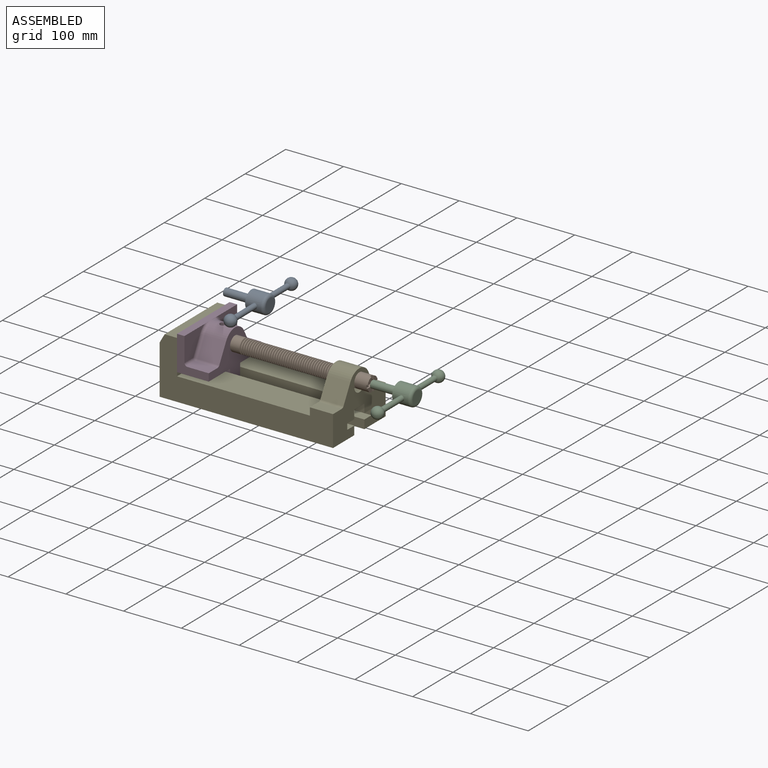
[diagram: assembled view]
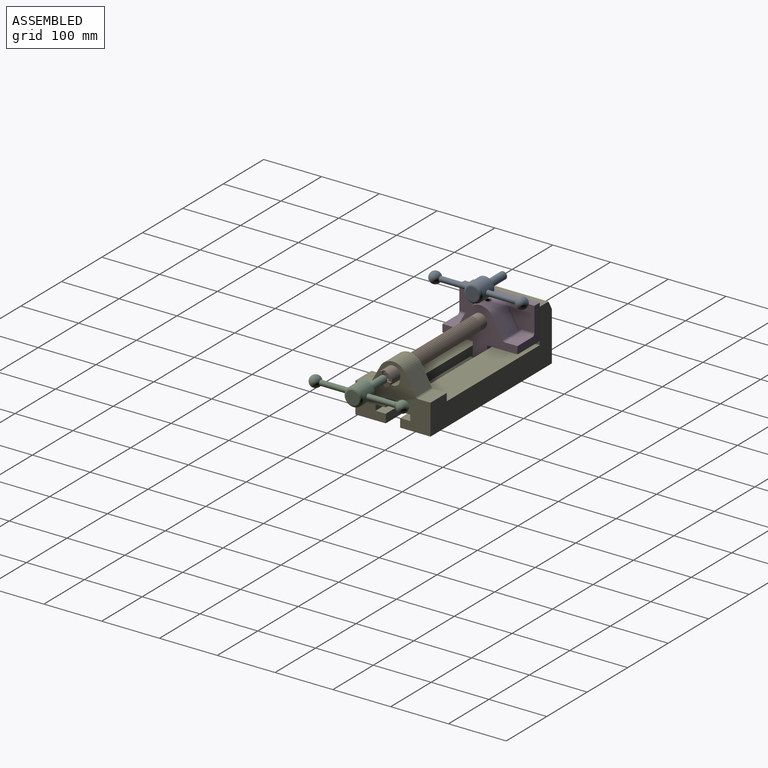
[diagram: assembled view, second angle]
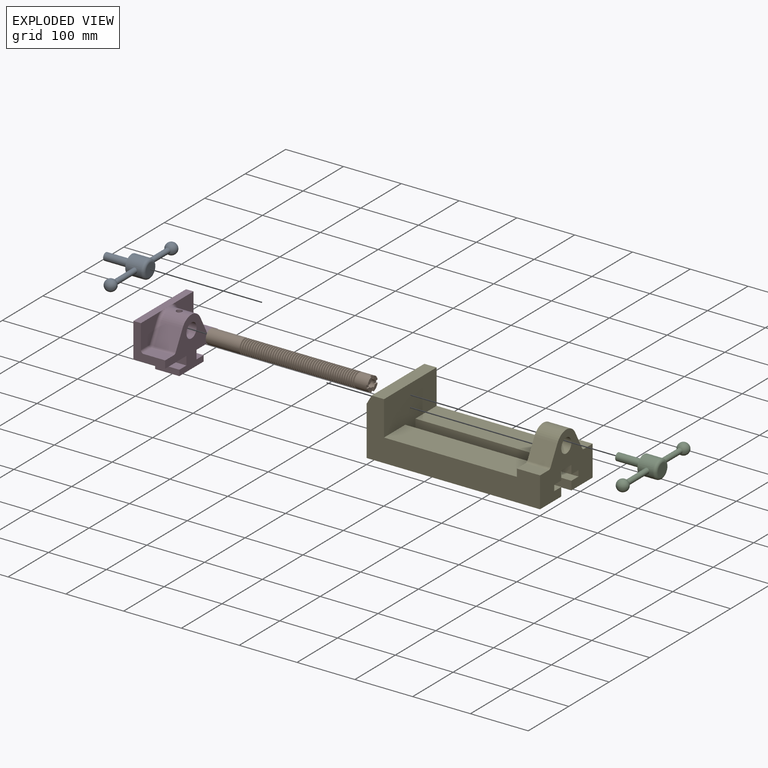
[diagram: exploded view]
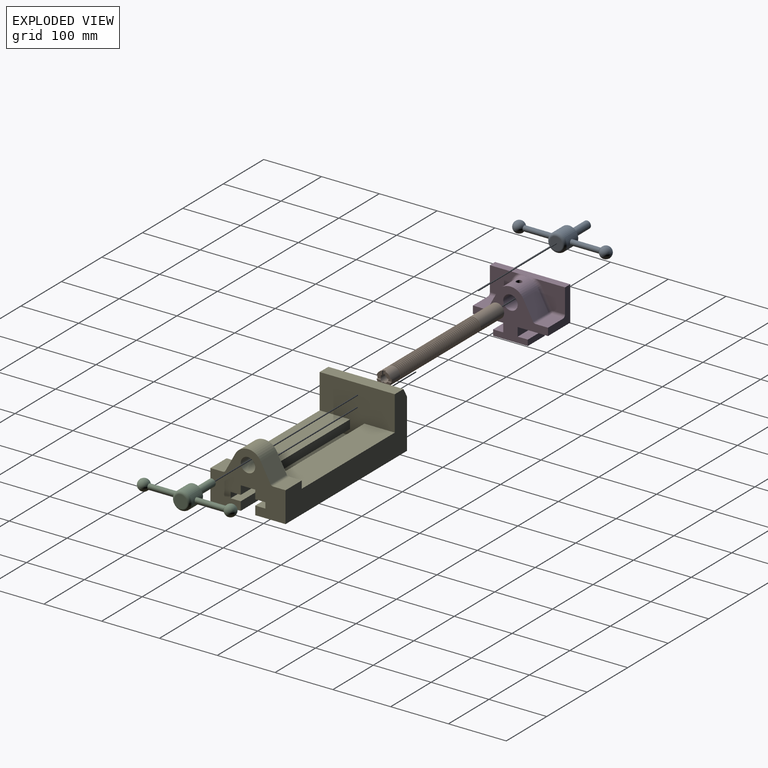
[diagram: exploded view, second angle]
ASSEMBLY  parts=5 mates=2
PART A: 12 faces, bbox 77x150x34.6 mm
  f0: cylinder r=4.5mm len=50.66mm, axis (0,1,0), area 1422mm2, adj f1,f2
  f1: cylinder r=16mm len=32mm, axis (-1,0,0), area 2585.9mm2, adj f0,f3,f4,f5
  f2: torus R=0.1mm, axis (-1,0,0), area 67.2mm2, adj f0
  f3: torus R=11mm, axis (1,0,0), area 699.9mm2, adj f1,f6
  f4: plane 32x32mm, normal (-1,0,0), area 671.5mm2, adj f1,f7
  f5: cylinder r=4.5mm len=50.66mm, axis (0,1,0), area 1422mm2, adj f1,f8
  f6: plane 22x22mm, normal (1,0,0), area 380.1mm2, adj f3
  f7: cylinder r=6.5mm len=45mm, axis (-1,0,0), area 1837.8mm2, adj f4,f9
  f8: torus R=0.1mm, axis (-1,0,0), area 67.2mm2, adj f5
  f9: plane 13x13mm, normal (-1,0,0), area 132.7mm2, adj f7
  f10: torus R=0.1mm, axis (-1,0,0), area 1237.9mm2
  f11: torus R=0.1mm, axis (-1,0,0), area 1237.9mm2
PART B: 220 faces, bbox 280x25x25 mm
  f0: cylinder r=12.5mm len=25mm, axis (-1,0,0), area 1756.1mm2, adj f1,f2,f3,f54,f56,f208,f209,f210
  f1: plane 9.75x9.75mm, normal (1,0,0), area 59.1mm2, adj f0,f4,f210,f217
  f2: plane 9.75x9.75mm, normal (1,0,0), area 59.1mm2, adj f0,f4,f216,f218
  f3: plane 9.75x9.75mm, normal (1,0,0), area 59.1mm2, adj f0,f4,f209,f212
  f4: cylinder r=6.5mm len=23mm, axis (-1,0,0), area 888mm2, adj f1,f2,f3,f54,f207,f208,f209,f210
  f5: cylinder r=12.5mm len=25mm, axis (-1,0,0), area 117.8mm2, adj f201,f203
  f6: cylinder r=12.5mm len=25mm, axis (-1,0,0), area 117.8mm2, adj f198,f200
  f7: cylinder r=12.5mm len=25mm, axis (-1,0,0), area 117.8mm2, adj f195,f197
  f8: cylinder r=12.5mm len=25mm, axis (-1,0,0), area 117.8mm2, adj f192,f194
  f9: cylinder r=12.5mm len=25mm, axis (-1,0,0), area 117.8mm2, adj f189,f191
  f10: cylinder r=12.5mm len=25mm, axis (-1,0,0), area 117.8mm2, adj f186,f188
  f11: cylinder r=12.5mm len=25mm, axis (-1,0,0), area 117.8mm2, adj f183,f185
  f12: cylinder r=12.5mm len=25mm, axis (-1,0,0), area 117.8mm2, adj f180,f182
  f13: cylinder r=12.5mm len=25mm, axis (-1,0,0), area 117.8mm2, adj f177,f179
  f14: cylinder r=12.5mm len=25mm, axis (-1,0,0), area 117.8mm2, adj f174,f176
  f15: cylinder r=12.5mm len=25mm, axis (-1,0,0), area 117.8mm2, adj f171,f173
  f16: cylinder r=12.5mm len=25mm, axis (-1,0,0), area 117.8mm2, adj f168,f170
  f17: cylinder r=12.5mm len=25mm, axis (-1,0,0), area 117.8mm2, adj f165,f167
  f18: cylinder r=12.5mm len=25mm, axis (-1,0,0), area 117.8mm2, adj f162,f164
  f19: cylinder r=12.5mm len=25mm, axis (-1,0,0), area 117.8mm2, adj f159,f161
  f20: cylinder r=12.5mm len=25mm, axis (-1,0,0), area 117.8mm2, adj f156,f158
  f21: cylinder r=12.5mm len=25mm, axis (-1,0,0), area 117.8mm2, adj f153,f155
  f22: cylinder r=12.5mm len=25mm, axis (-1,0,0), area 117.8mm2, adj f150,f152
  f23: cylinder r=12.5mm len=25mm, axis (-1,0,0), area 117.8mm2, adj f147,f149
  f24: cylinder r=12.5mm len=25mm, axis (-1,0,0), area 117.8mm2, adj f144,f146
  f25: cylinder r=12.5mm len=25mm, axis (-1,0,0), area 117.8mm2, adj f141,f143
  f26: cylinder r=12.5mm len=25mm, axis (-1,0,0), area 117.8mm2, adj f138,f140
  f27: cylinder r=12.5mm len=25mm, axis (-1,0,0), area 117.8mm2, adj f135,f137
  f28: cylinder r=12.5mm len=25mm, axis (-1,0,0), area 117.8mm2, adj f132,f134
  f29: cylinder r=12.5mm len=25mm, axis (-1,0,0), area 117.8mm2, adj f129,f131
  f30: cylinder r=12.5mm len=25mm, axis (-1,0,0), area 117.8mm2, adj f126,f128
  f31: cylinder r=12.5mm len=25mm, axis (-1,0,0), area 117.8mm2, adj f123,f125
  f32: cylinder r=12.5mm len=25mm, axis (-1,0,0), area 117.8mm2, adj f120,f122
  f33: cylinder r=12.5mm len=25mm, axis (-1,0,0), area 117.8mm2, adj f117,f119
  f34: cylinder r=12.5mm len=25mm, axis (-1,0,0), area 117.8mm2, adj f114,f116
  f35: cylinder r=12.5mm len=25mm, axis (-1,0,0), area 117.8mm2, adj f111,f113
  f36: cylinder r=12.5mm len=25mm, axis (-1,0,0), area 117.8mm2, adj f108,f110
  f37: cylinder r=12.5mm len=25mm, axis (-1,0,0), area 117.8mm2, adj f105,f107
  f38: cylinder r=12.5mm len=25mm, axis (-1,0,0), area 117.8mm2, adj f102,f104
  f39: cylinder r=12.5mm len=25mm, axis (-1,0,0), area 117.8mm2, adj f99,f101
  f40: cylinder r=12.5mm len=25mm, axis (-1,0,0), area 117.8mm2, adj f96,f98
  f41: cylinder r=12.5mm len=25mm, axis (-1,0,0), area 117.8mm2, adj f93,f95
  f42: cylinder r=12.5mm len=25mm, axis (-1,0,0), area 117.8mm2, adj f90,f92
  f43: cylinder r=12.5mm len=25mm, axis (-1,0,0), area 117.8mm2, adj f87,f89
  f44: cylinder r=12.5mm len=25mm, axis (-1,0,0), area 117.8mm2, adj f84,f86
  f45: cylinder r=12.5mm len=25mm, axis (-1,0,0), area 117.8mm2, adj f81,f83
  f46: cylinder r=12.5mm len=25mm, axis (-1,0,0), area 117.8mm2, adj f78,f80
  f47: cylinder r=12.5mm len=25mm, axis (-1,0,0), area 117.8mm2, adj f75,f77
  f48: cylinder r=12.5mm len=25mm, axis (-1,0,0), area 117.8mm2, adj f72,f74
  f49: cylinder r=12.5mm len=25mm, axis (-1,0,0), area 117.8mm2, adj f69,f71
  f50: cylinder r=12.5mm len=25mm, axis (-1,0,0), area 117.8mm2, adj f66,f68
  f51: cylinder r=12.5mm len=25mm, axis (-1,0,0), area 117.8mm2, adj f63,f65
  f52: cylinder r=12.5mm len=25mm, axis (-1,0,0), area 117.8mm2, adj f60,f62
  f53: cylinder r=12.5mm len=25mm, axis (-1,0,0), area 117.8mm2, adj f57,f59
  f54: plane 9.75x9.75mm, normal (1,0,0), area 59.1mm2, adj f0,f4,f213,f215
  f55: cylinder r=10mm len=20mm, axis (-1,0,0), area 75.4mm2, adj f56,f57
  f56: cone r=10mm half-angle=75.4deg, axis (1,0,0), area 182.6mm2, adj f0,f55
  f57: cone r=12.5mm half-angle=75.4deg, axis (-1,0,0), area 182.6mm2, adj f53,f55
  f58: cylinder r=10mm len=20mm, axis (-1,0,0), area 75.4mm2, adj f59,f60
  f59: cone r=10mm half-angle=75.4deg, axis (1,0,0), area 182.6mm2, adj f53,f58
  f60: cone r=12.5mm half-angle=75.4deg, axis (-1,0,0), area 182.6mm2, adj f52,f58
  f61: cylinder r=10mm len=20mm, axis (-1,0,0), area 75.4mm2, adj f62,f63
  f62: cone r=10mm half-angle=75.4deg, axis (1,0,0), area 182.6mm2, adj f52,f61
  f63: cone r=12.5mm half-angle=75.4deg, axis (-1,0,0), area 182.6mm2, adj f51,f61
  f64: cylinder r=10mm len=20mm, axis (-1,0,0), area 75.4mm2, adj f65,f66
  f65: cone r=10mm half-angle=75.4deg, axis (1,0,0), area 182.6mm2, adj f51,f64
  f66: cone r=12.5mm half-angle=75.4deg, axis (-1,0,0), area 182.6mm2, adj f50,f64
  f67: cylinder r=10mm len=20mm, axis (-1,0,0), area 75.4mm2, adj f68,f69
  f68: cone r=10mm half-angle=75.4deg, axis (1,0,0), area 182.6mm2, adj f50,f67
  f69: cone r=12.5mm half-angle=75.4deg, axis (-1,0,0), area 182.6mm2, adj f49,f67
  f70: cylinder r=10mm len=20mm, axis (-1,0,0), area 75.4mm2, adj f71,f72
  f71: cone r=10mm half-angle=75.4deg, axis (1,0,0), area 182.6mm2, adj f49,f70
  f72: cone r=12.5mm half-angle=75.4deg, axis (-1,0,0), area 182.6mm2, adj f48,f70
  f73: cylinder r=10mm len=20mm, axis (-1,0,0), area 75.4mm2, adj f74,f75
  f74: cone r=10mm half-angle=75.4deg, axis (1,0,0), area 182.6mm2, adj f48,f73
  f75: cone r=12.5mm half-angle=75.4deg, axis (-1,0,0), area 182.6mm2, adj f47,f73
  f76: cylinder r=10mm len=20mm, axis (-1,0,0), area 75.4mm2, adj f77,f78
  f77: cone r=10mm half-angle=75.4deg, axis (1,0,0), area 182.6mm2, adj f47,f76
  f78: cone r=12.5mm half-angle=75.4deg, axis (-1,0,0), area 182.6mm2, adj f46,f76
  f79: cylinder r=10mm len=20mm, axis (-1,0,0), area 75.4mm2, adj f80,f81
  f80: cone r=10mm half-angle=75.4deg, axis (1,0,0), area 182.6mm2, adj f46,f79
  f81: cone r=12.5mm half-angle=75.4deg, axis (-1,0,0), area 182.6mm2, adj f45,f79
  f82: cylinder r=10mm len=20mm, axis (-1,0,0), area 75.4mm2, adj f83,f84
  f83: cone r=10mm half-angle=75.4deg, axis (1,0,0), area 182.6mm2, adj f45,f82
  f84: cone r=12.5mm half-angle=75.4deg, axis (-1,0,0), area 182.6mm2, adj f44,f82
  f85: cylinder r=10mm len=20mm, axis (-1,0,0), area 75.4mm2, adj f86,f87
  f86: cone r=10mm half-angle=75.4deg, axis (1,0,0), area 182.6mm2, adj f44,f85
  f87: cone r=12.5mm half-angle=75.4deg, axis (-1,0,0), area 182.6mm2, adj f43,f85
  f88: cylinder r=10mm len=20mm, axis (-1,0,0), area 75.4mm2, adj f89,f90
  f89: cone r=10mm half-angle=75.4deg, axis (1,0,0), area 182.6mm2, adj f43,f88
  f90: cone r=12.5mm half-angle=75.4deg, axis (-1,0,0), area 182.6mm2, adj f42,f88
  f91: cylinder r=10mm len=20mm, axis (-1,0,0), area 75.4mm2, adj f92,f93
  f92: cone r=10mm half-angle=75.4deg, axis (1,0,0), area 182.6mm2, adj f42,f91
  f93: cone r=12.5mm half-angle=75.4deg, axis (-1,0,0), area 182.6mm2, adj f41,f91
  f94: cylinder r=10mm len=20mm, axis (-1,0,0), area 75.4mm2, adj f95,f96
  f95: cone r=10mm half-angle=75.4deg, axis (1,0,0), area 182.6mm2, adj f41,f94
  f96: cone r=12.5mm half-angle=75.4deg, axis (-1,0,0), area 182.6mm2, adj f40,f94
  f97: cylinder r=10mm len=20mm, axis (-1,0,0), area 75.4mm2, adj f98,f99
  f98: cone r=10mm half-angle=75.4deg, axis (1,0,0), area 182.6mm2, adj f40,f97
  f99: cone r=12.5mm half-angle=75.4deg, axis (-1,0,0), area 182.6mm2, adj f39,f97
  f100: cylinder r=10mm len=20mm, axis (-1,0,0), area 75.4mm2, adj f101,f102
  f101: cone r=10mm half-angle=75.4deg, axis (1,0,0), area 182.6mm2, adj f39,f100
  f102: cone r=12.5mm half-angle=75.4deg, axis (-1,0,0), area 182.6mm2, adj f38,f100
  f103: cylinder r=10mm len=20mm, axis (-1,0,0), area 75.4mm2, adj f104,f105
  f104: cone r=10mm half-angle=75.4deg, axis (1,0,0), area 182.6mm2, adj f38,f103
  f105: cone r=12.5mm half-angle=75.4deg, axis (-1,0,0), area 182.6mm2, adj f37,f103
  f106: cylinder r=10mm len=20mm, axis (-1,0,0), area 75.4mm2, adj f107,f108
  f107: cone r=10mm half-angle=75.4deg, axis (1,0,0), area 182.6mm2, adj f37,f106
  f108: cone r=12.5mm half-angle=75.4deg, axis (-1,0,0), area 182.6mm2, adj f36,f106
  f109: cylinder r=10mm len=20mm, axis (-1,0,0), area 75.4mm2, adj f110,f111
  f110: cone r=10mm half-angle=75.4deg, axis (1,0,0), area 182.6mm2, adj f36,f109
  f111: cone r=12.5mm half-angle=75.4deg, axis (-1,0,0), area 182.6mm2, adj f35,f109
  f112: cylinder r=10mm len=20mm, axis (-1,0,0), area 75.4mm2, adj f113,f114
  f113: cone r=10mm half-angle=75.4deg, axis (1,0,0), area 182.6mm2, adj f35,f112
  f114: cone r=12.5mm half-angle=75.4deg, axis (-1,0,0), area 182.6mm2, adj f34,f112
  f115: cylinder r=10mm len=20mm, axis (-1,0,0), area 75.4mm2, adj f116,f117
  f116: cone r=10mm half-angle=75.4deg, axis (1,0,0), area 182.6mm2, adj f34,f115
  f117: cone r=12.5mm half-angle=75.4deg, axis (-1,0,0), area 182.6mm2, adj f33,f115
  f118: cylinder r=10mm len=20mm, axis (-1,0,0), area 75.4mm2, adj f119,f120
  f119: cone r=10mm half-angle=75.4deg, axis (1,0,0), area 182.6mm2, adj f33,f118
  f120: cone r=12.5mm half-angle=75.4deg, axis (-1,0,0), area 182.6mm2, adj f32,f118
  f121: cylinder r=10mm len=20mm, axis (-1,0,0), area 75.4mm2, adj f122,f123
  f122: cone r=10mm half-angle=75.4deg, axis (1,0,0), area 182.6mm2, adj f32,f121
  f123: cone r=12.5mm half-angle=75.4deg, axis (-1,0,0), area 182.6mm2, adj f31,f121
  f124: cylinder r=10mm len=20mm, axis (-1,0,0), area 75.4mm2, adj f125,f126
  f125: cone r=10mm half-angle=75.4deg, axis (1,0,0), area 182.6mm2, adj f31,f124
  f126: cone r=12.5mm half-angle=75.4deg, axis (-1,0,0), area 182.6mm2, adj f30,f124
  f127: cylinder r=10mm len=20mm, axis (-1,0,0), area 75.4mm2, adj f128,f129
  f128: cone r=10mm half-angle=75.4deg, axis (1,0,0), area 182.6mm2, adj f30,f127
  f129: cone r=12.5mm half-angle=75.4deg, axis (-1,0,0), area 182.6mm2, adj f29,f127
  f130: cylinder r=10mm len=20mm, axis (-1,0,0), area 75.4mm2, adj f131,f132
  f131: cone r=10mm half-angle=75.4deg, axis (1,0,0), area 182.6mm2, adj f29,f130
  f132: cone r=12.5mm half-angle=75.4deg, axis (-1,0,0), area 182.6mm2, adj f28,f130
  f133: cylinder r=10mm len=20mm, axis (-1,0,0), area 75.4mm2, adj f134,f135
  f134: cone r=10mm half-angle=75.4deg, axis (1,0,0), area 182.6mm2, adj f28,f133
  f135: cone r=12.5mm half-angle=75.4deg, axis (-1,0,0), area 182.6mm2, adj f27,f133
  f136: cylinder r=10mm len=20mm, axis (-1,0,0), area 75.4mm2, adj f137,f138
  f137: cone r=10mm half-angle=75.4deg, axis (1,0,0), area 182.6mm2, adj f27,f136
  f138: cone r=12.5mm half-angle=75.4deg, axis (-1,0,0), area 182.6mm2, adj f26,f136
  f139: cylinder r=10mm len=20mm, axis (-1,0,0), area 75.4mm2, adj f140,f141
  f140: cone r=10mm half-angle=75.4deg, axis (1,0,0), area 182.6mm2, adj f26,f139
  f141: cone r=12.5mm half-angle=75.4deg, axis (-1,0,0), area 182.6mm2, adj f25,f139
  f142: cylinder r=10mm len=20mm, axis (-1,0,0), area 75.4mm2, adj f143,f144
  f143: cone r=10mm half-angle=75.4deg, axis (1,0,0), area 182.6mm2, adj f25,f142
  f144: cone r=12.5mm half-angle=75.4deg, axis (-1,0,0), area 182.6mm2, adj f24,f142
  f145: cylinder r=10mm len=20mm, axis (-1,0,0), area 75.4mm2, adj f146,f147
  f146: cone r=10mm half-angle=75.4deg, axis (1,0,0), area 182.6mm2, adj f24,f145
  f147: cone r=12.5mm half-angle=75.4deg, axis (-1,0,0), area 182.6mm2, adj f23,f145
  f148: cylinder r=10mm len=20mm, axis (-1,0,0), area 75.4mm2, adj f149,f150
  f149: cone r=10mm half-angle=75.4deg, axis (1,0,0), area 182.6mm2, adj f23,f148
  f150: cone r=12.5mm half-angle=75.4deg, axis (-1,0,0), area 182.6mm2, adj f22,f148
  f151: cylinder r=10mm len=20mm, axis (-1,0,0), area 75.4mm2, adj f152,f153
  f152: cone r=10mm half-angle=75.4deg, axis (1,0,0), area 182.6mm2, adj f22,f151
  f153: cone r=12.5mm half-angle=75.4deg, axis (-1,0,0), area 182.6mm2, adj f21,f151
  f154: cylinder r=10mm len=20mm, axis (-1,0,0), area 75.4mm2, adj f155,f156
  f155: cone r=10mm half-angle=75.4deg, axis (1,0,0), area 182.6mm2, adj f21,f154
  f156: cone r=12.5mm half-angle=75.4deg, axis (-1,0,0), area 182.6mm2, adj f20,f154
  f157: cylinder r=10mm len=20mm, axis (-1,0,0), area 75.4mm2, adj f158,f159
  f158: cone r=10mm half-angle=75.4deg, axis (1,0,0), area 182.6mm2, adj f20,f157
  f159: cone r=12.5mm half-angle=75.4deg, axis (-1,0,0), area 182.6mm2, adj f19,f157
  f160: cylinder r=10mm len=20mm, axis (-1,0,0), area 75.4mm2, adj f161,f162
  f161: cone r=10mm half-angle=75.4deg, axis (1,0,0), area 182.6mm2, adj f19,f160
  f162: cone r=12.5mm half-angle=75.4deg, axis (-1,0,0), area 182.6mm2, adj f18,f160
  f163: cylinder r=10mm len=20mm, axis (-1,0,0), area 75.4mm2, adj f164,f165
  f164: cone r=10mm half-angle=75.4deg, axis (1,0,0), area 182.6mm2, adj f18,f163
  f165: cone r=12.5mm half-angle=75.4deg, axis (-1,0,0), area 182.6mm2, adj f17,f163
  f166: cylinder r=10mm len=20mm, axis (-1,0,0), area 75.4mm2, adj f167,f168
  f167: cone r=10mm half-angle=75.4deg, axis (1,0,0), area 182.6mm2, adj f17,f166
  f168: cone r=12.5mm half-angle=75.4deg, axis (-1,0,0), area 182.6mm2, adj f16,f166
  f169: cylinder r=10mm len=20mm, axis (-1,0,0), area 75.4mm2, adj f170,f171
  f170: cone r=10mm half-angle=75.4deg, axis (1,0,0), area 182.6mm2, adj f16,f169
  f171: cone r=12.5mm half-angle=75.4deg, axis (-1,0,0), area 182.6mm2, adj f15,f169
  f172: cylinder r=10mm len=20mm, axis (-1,0,0), area 75.4mm2, adj f173,f174
  f173: cone r=10mm half-angle=75.4deg, axis (1,0,0), area 182.6mm2, adj f15,f172
  f174: cone r=12.5mm half-angle=75.4deg, axis (-1,0,0), area 182.6mm2, adj f14,f172
  f175: cylinder r=10mm len=20mm, axis (-1,0,0), area 75.4mm2, adj f176,f177
  f176: cone r=10mm half-angle=75.4deg, axis (1,0,0), area 182.6mm2, adj f14,f175
  f177: cone r=12.5mm half-angle=75.4deg, axis (-1,0,0), area 182.6mm2, adj f13,f175
  f178: cylinder r=10mm len=20mm, axis (-1,0,0), area 75.4mm2, adj f179,f180
  f179: cone r=10mm half-angle=75.4deg, axis (1,0,0), area 182.6mm2, adj f13,f178
  f180: cone r=12.5mm half-angle=75.4deg, axis (-1,0,0), area 182.6mm2, adj f12,f178
  f181: cylinder r=10mm len=20mm, axis (-1,0,0), area 75.4mm2, adj f182,f183
  f182: cone r=10mm half-angle=75.4deg, axis (1,0,0), area 182.6mm2, adj f12,f181
  f183: cone r=12.5mm half-angle=75.4deg, axis (-1,0,0), area 182.6mm2, adj f11,f181
  f184: cylinder r=10mm len=20mm, axis (-1,0,0), area 75.4mm2, adj f185,f186
  f185: cone r=10mm half-angle=75.4deg, axis (1,0,0), area 182.6mm2, adj f11,f184
  f186: cone r=12.5mm half-angle=75.4deg, axis (-1,0,0), area 182.6mm2, adj f10,f184
  f187: cylinder r=10mm len=20mm, axis (-1,0,0), area 75.4mm2, adj f188,f189
  f188: cone r=10mm half-angle=75.4deg, axis (1,0,0), area 182.6mm2, adj f10,f187
  f189: cone r=12.5mm half-angle=75.4deg, axis (-1,0,0), area 182.6mm2, adj f9,f187
  f190: cylinder r=10mm len=20mm, axis (-1,0,0), area 75.4mm2, adj f191,f192
  f191: cone r=10mm half-angle=75.4deg, axis (1,0,0), area 182.6mm2, adj f9,f190
  f192: cone r=12.5mm half-angle=75.4deg, axis (-1,0,0), area 182.6mm2, adj f8,f190
  f193: cylinder r=10mm len=20mm, axis (-1,0,0), area 75.4mm2, adj f194,f195
  f194: cone r=10mm half-angle=75.4deg, axis (1,0,0), area 182.6mm2, adj f8,f193
  f195: cone r=12.5mm half-angle=75.4deg, axis (-1,0,0), area 182.6mm2, adj f7,f193
  f196: cylinder r=10mm len=20mm, axis (-1,0,0), area 75.4mm2, adj f197,f198
  f197: cone r=10mm half-angle=75.4deg, axis (1,0,0), area 182.6mm2, adj f7,f196
  f198: cone r=12.5mm half-angle=75.4deg, axis (-1,0,0), area 182.6mm2, adj f6,f196
  f199: cylinder r=10mm len=20mm, axis (-1,0,0), area 75.4mm2, adj f200,f201
  f200: cone r=10mm half-angle=75.4deg, axis (1,0,0), area 182.6mm2, adj f6,f199
  f201: cone r=12.5mm half-angle=75.4deg, axis (-1,0,0), area 182.6mm2, adj f5,f199
  f202: cylinder r=10mm len=20mm, axis (-1,0,0), area 75.4mm2, adj f203,f204
  f203: cone r=10mm half-angle=75.4deg, axis (1,0,0), area 182.6mm2, adj f5,f202
  f204: cone r=12.5mm half-angle=75.4deg, axis (-1,0,0), area 182.6mm2, adj f202,f206
  f205: plane 25x25mm, normal (-1,0,0), area 490.9mm2, adj f206
  f206: cylinder r=12.5mm len=58.5mm, axis (-1,0,0), area 4594.6mm2, adj f204,f205
  f207: plane 13x13mm, normal (1,0,0), area 132.7mm2, adj f4
  f208: plane 6.5x5mm, normal (1,0,0), area 30.4mm2, adj f0,f4,f209,f210
  f209: plane 6.25x2.5mm, normal (0,1,0), area 15.6mm2, adj f0,f3,f4,f208
  f210: plane 6.25x2.5mm, normal (0,-1,0), area 15.6mm2, adj f0,f1,f4,f208
  f211: plane 6.5x5mm, normal (1,0,0), area 30.4mm2, adj f0,f4,f212,f213
  f212: plane 6.25x2.5mm, normal (0,0,1), area 15.6mm2, adj f0,f3,f4,f211
  f213: plane 6.25x2.5mm, normal (0,0,-1), area 15.6mm2, adj f0,f4,f54,f211
  f214: plane 6.5x5mm, normal (1,0,0), area 30.4mm2, adj f0,f4,f215,f216
  f215: plane 6.25x2.5mm, normal (0,1,0), area 15.6mm2, adj f0,f4,f54,f214
  f216: plane 6.25x2.5mm, normal (0,-1,0), area 15.6mm2, adj f0,f2,f4,f214
  f217: plane 6.25x2.5mm, normal (0,0,1), area 15.6mm2, adj f0,f1,f4,f219
  f218: plane 6.25x2.5mm, normal (0,0,-1), area 15.6mm2, adj f0,f2,f4,f219
  f219: plane 6.5x5mm, normal (1,0,0), area 30.4mm2, adj f0,f4,f217,f218
PART C: same geometry as A
PART D: 36 faces, bbox 55.4x130.4x90.6 mm
  f0: plane 130x55mm, normal (0,0,-1), area 6100mm2, adj f4,f5,f7,f9,f15,f16,f20
  f1: plane 37x21.6mm, normal (0,0,1), area 799.2mm2, adj f5,f7,f30,f31
  f2: plane 48.42x42mm, normal (1,0,0), area 1399.6mm2, adj f4,f8,f24,f28,f29
  f3: plane 48.42x42mm, normal (1,0,0), area 1399.6mm2, adj f7,f8,f31,f33,f34
  f4: plane 60x55mm, normal (0,1,0), area 1331.4mm2, adj f0,f2,f5,f6,f8,f9,f24
  f5: plane 130x85mm, normal (1,0,0), area 4702.9mm2, adj f0,f1,f4,f6,f7,f10,f11,f12
  f6: plane 37x21.6mm, normal (0,0,1), area 799.2mm2, adj f4,f5,f24,f25
  f7: plane 60x55mm, normal (0,-1,0), area 1331.4mm2, adj f0,f1,f3,f5,f8,f9,f31
  f8: plane 130.35x13.35mm, normal (0,0,1), area 1690mm2, adj f2,f3,f4,f7,f9,f26,f35
  f9: plane 130x60mm, normal (-1,0,0), area 7800mm2, adj f0,f4,f7,f8
  f10: plane 37x31.34mm, normal (0,-0.88,0.48), area 1319.9mm2, adj f5,f12,f30,f33
  f11: plane 37x31.34mm, normal (0,0.88,0.48), area 1319.9mm2, adj f5,f12,f25,f29
  f12: cylinder r=25mm len=43.92mm, axis (1,0,0), area 1962.1mm2, adj f5,f10,f11,f23,f26,f28,f34,f35
  f13: cylinder r=12.5mm len=42mm, axis (1,0,0), area 3218.4mm2, adj f5,f14,f23
  f14: plane 25x25mm, normal (1,0,0), area 490.9mm2, adj f13
  f15: plane 60x25mm, normal (-1,0,0), area 975mm2, adj f0,f16,f17,f18,f19,f20,f21,f22
  f16: plane 42x15mm, normal (0,-1,0), area 630mm2, adj f0,f5,f15,f17
  f17: plane 42x17.5mm, normal (0,0,1), area 735mm2, adj f5,f15,f16,f18
  f18: plane 42x10mm, normal (0,-1,0), area 420mm2, adj f5,f15,f17,f19
  f19: plane 60x42mm, normal (0,0,-1), area 2520mm2, adj f5,f15,f18,f21
  f20: plane 42x15mm, normal (0,1,0), area 630mm2, adj f0,f5,f15,f22
  f21: plane 42x10mm, normal (0,1,0), area 420mm2, adj f5,f15,f19,f22
  f22: plane 42x17.5mm, normal (0,0,1), area 735mm2, adj f5,f15,f20,f21
  f23: cylinder r=5mm len=13.54mm, axis (0,0,1), area 401mm2, adj f12,f13
  f24: cylinder r=5mm len=21.6mm, axis (0,1,0), area 169.6mm2, adj f2,f4,f6,f27
  f25: cylinder r=5mm len=37mm, axis (1,0,0), area 198.4mm2, adj f5,f6,f11,f27
  f26: bspline ~17.21x5.35mm, area 55.9mm2, adj f8,f12,f28
  f27: sphere r=5mm, area 26.8mm2, adj f24,f25,f29
  f28: torus R=30mm, axis (-1,0,0), area 102.5mm2, adj f2,f12,f26,f29
  f29: cylinder r=5mm len=33.73mm, axis (0,-0.48,0.88), area 280.2mm2, adj f2,f11,f27,f28
  f30: cylinder r=5mm len=37mm, axis (-1,0,0), area 198.4mm2, adj f1,f5,f10,f32
  f31: cylinder r=5mm len=21.6mm, axis (0,1,0), area 169.6mm2, adj f1,f3,f7,f32
  f32: sphere r=5mm, area 26.8mm2, adj f30,f31,f33
  f33: cylinder r=5mm len=33.73mm, axis (0,-0.48,-0.88), area 280.2mm2, adj f3,f10,f32,f34
  f34: torus R=30mm, axis (-1,0,0), area 102.5mm2, adj f3,f12,f33,f35
  f35: bspline ~17.21x5.35mm, area 55.9mm2, adj f8,f12,f34
PART E: 30 faces, bbox 300x130x100 mm
  f0: plane 130x100mm, normal (1,0,0), area 7577.9mm2, adj f2,f7,f8,f10,f11,f12,f13,f14
  f1: plane 230x52.5mm, normal (0,0,1), area 12075mm2, adj f4,f7,f16,f19
  f2: plane 300x130mm, normal (0,0,-1), area 32250mm2, adj f0,f4,f6,f7,f8,f23,f24
  f3: plane 230x52.5mm, normal (0,0,1), area 12075mm2, adj f4,f8,f16,f18
  f4: plane 130x100mm, normal (1,0,0), area 9150mm2, adj f1,f2,f3,f5,f7,f8,f18,f19
  f5: plane 130x21.34mm, normal (0,0,1), area 2774.2mm2, adj f4,f7,f8,f9
  f6: plane 130x85mm, normal (-1,0,0), area 11050mm2, adj f2,f7,f8,f9
  f7: plane 300x100mm, normal (0,-1,0), area 14255mm2, adj f0,f1,f2,f4,f5,f6,f9,f14
  f8: plane 300x100mm, normal (0,1,0), area 14255mm2, adj f0,f2,f3,f4,f5,f6,f9,f10
  f9: plane 130x15mm, normal (-0.87,0,0.5), area 2251.7mm2, adj f5,f6,f7,f8
  f10: plane 40x21.6mm, normal (0,0,1), area 864mm2, adj f0,f8,f16,f28
  f11: plane 40x31.34mm, normal (0,0.88,0.48), area 1426.9mm2, adj f0,f12,f16,f28
  f12: cylinder r=25mm len=43.92mm, axis (1,0,0), area 2145.1mm2, adj f0,f11,f13,f16
  f13: plane 40x31.34mm, normal (0,-0.88,0.48), area 1426.9mm2, adj f0,f12,f16,f29
  f14: plane 40x21.6mm, normal (0,0,1), area 864mm2, adj f0,f7,f16,f29
  f15: cylinder r=12.5mm len=40mm, axis (1,0,0), area 3141.6mm2, adj f0,f16
  f16: plane 130x60mm, normal (-1,0,0), area 3727.9mm2, adj f1,f3,f7,f8,f10,f11,f12,f13
  f17: plane 40x25mm, normal (0,0,-1), area 1000mm2, adj f0,f16,f18,f19
  f18: plane 270x15mm, normal (0,-1,0), area 4050mm2, adj f0,f3,f4,f17,f25
  f19: plane 270x15mm, normal (0,1,0), area 4050mm2, adj f0,f1,f4,f17,f20
  f20: plane 270x17.5mm, normal (0,0,-1), area 4725mm2, adj f0,f4,f19,f21
  f21: plane 270x10mm, normal (0,1,0), area 2700mm2, adj f0,f4,f20,f22
  f22: plane 270x17.5mm, normal (0,0,1), area 4725mm2, adj f0,f4,f21,f23
  f23: plane 270x15mm, normal (0,1,0), area 4050mm2, adj f0,f2,f4,f22
  f24: plane 270x15mm, normal (0,-1,0), area 4050mm2, adj f0,f2,f4,f26
  f25: plane 270x17.5mm, normal (0,0,-1), area 4725mm2, adj f0,f4,f18,f27
  f26: plane 270x17.5mm, normal (0,0,1), area 4725mm2, adj f0,f4,f24,f27
  f27: plane 270x10mm, normal (0,-1,0), area 2700mm2, adj f0,f4,f25,f26
  f28: cylinder r=5mm len=40mm, axis (-1,0,0), area 214.5mm2, adj f0,f10,f11,f16
  f29: cylinder r=5mm len=40mm, axis (-1,0,0), area 214.5mm2, adj f0,f13,f14,f16
PLACE A t=(-106.75,89.94,119.38)mm
PLACE B t=(138.23,70.59,54.28)mm
PLACE C t=(161.23,70.59,54.28)mm
PLACE D t=(138.23,70.59,54.28)mm
PLACE E t=(138.23,70.59,47.88)mm
MATE slider D.f0 <-> E.f1  axis (0,0,1) through (-131.77,5.59,94.28)mm
MATE fastened C.f1 <-> B.f0  axis (-1,0,0) through (161.23,70.59,129.28)mm
